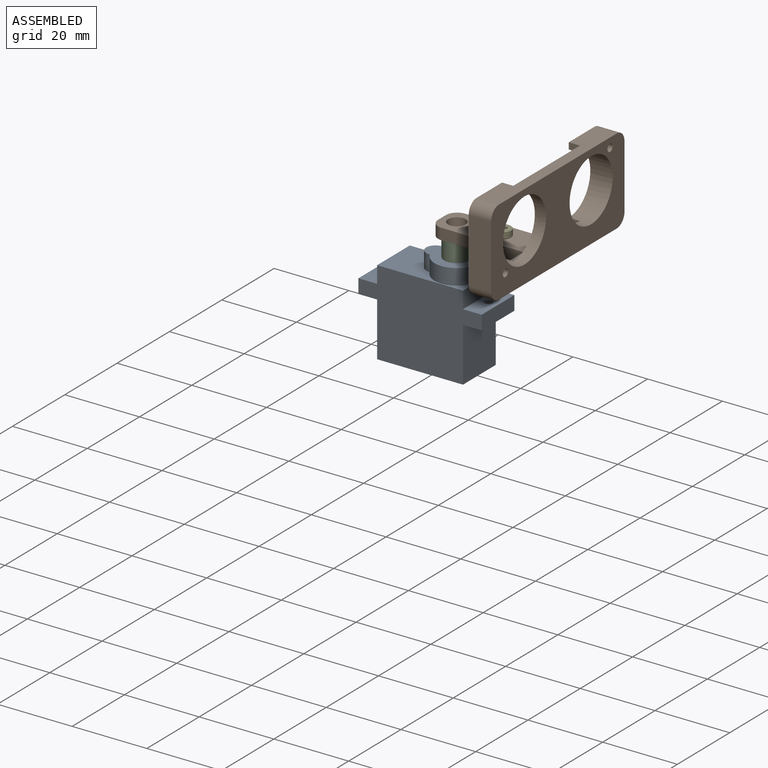
[diagram: assembled view]
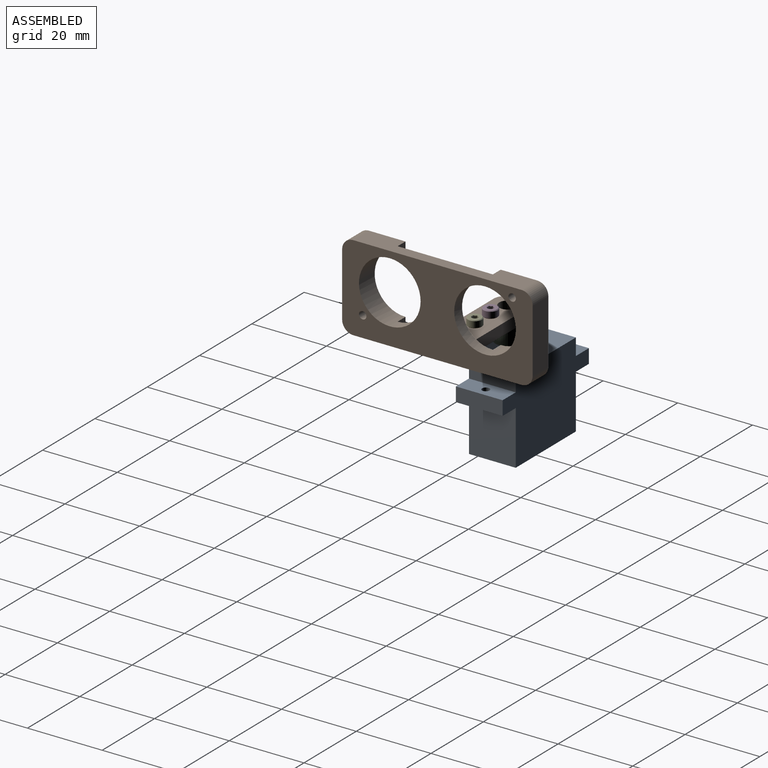
[diagram: assembled view, second angle]
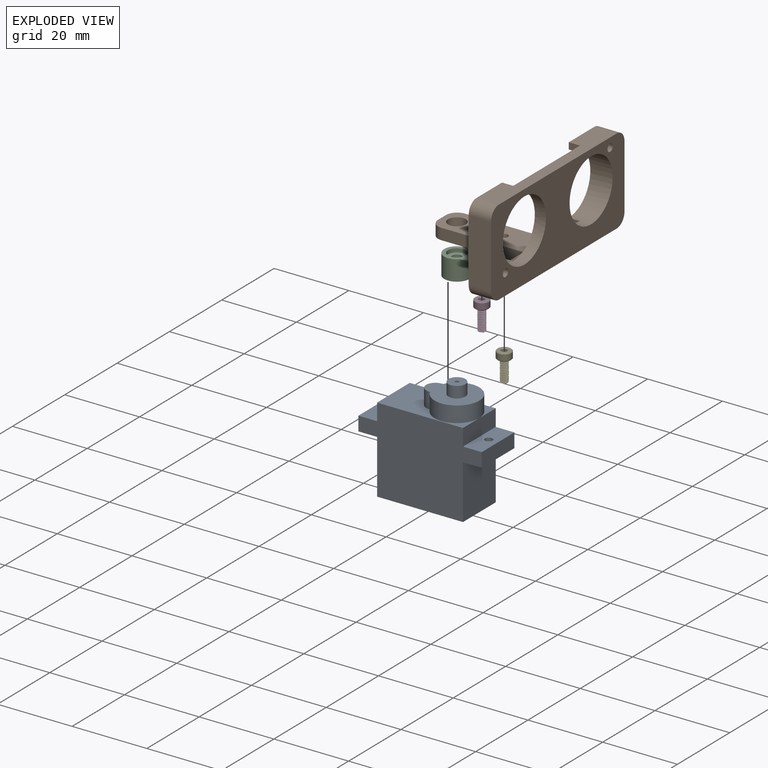
[diagram: exploded view]
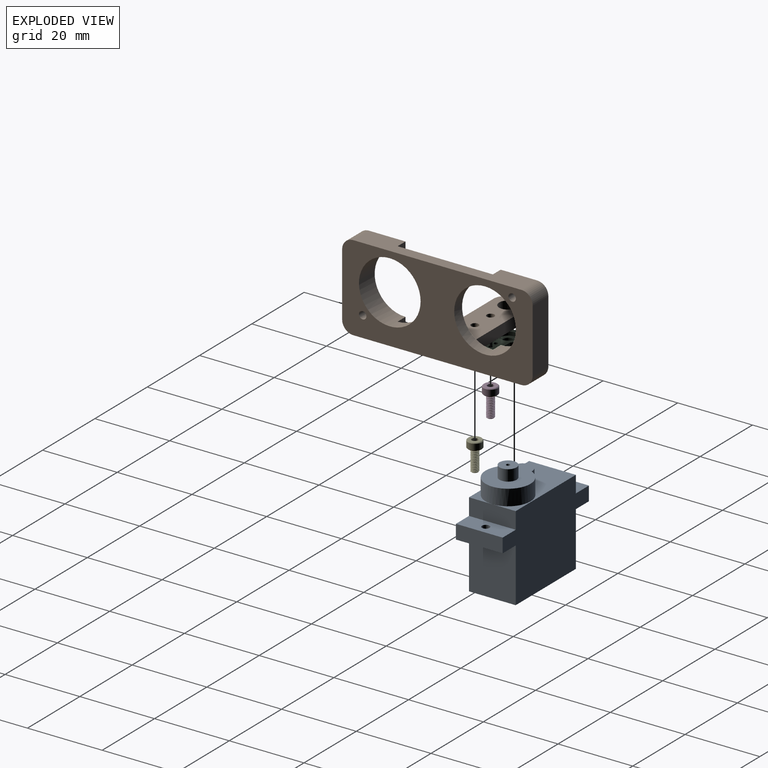
[diagram: exploded view, second angle]
ASSEMBLY  parts=5 mates=4
PART A: 25 faces, bbox 33x12.5x30 mm
  f0: cylinder r=0.5mm len=7.25mm, axis (0,0,1), area 22.8mm2, adj f14,f23
  f1: plane 12.5x4.5mm, normal (-1,0,0), area 56.3mm2, adj f3,f5,f9,f22
  f2: plane 12.5x4.5mm, normal (1,0,0), area 56.3mm2, adj f3,f5,f9,f18
  f3: plane 33x22.75mm, normal (0,-1,0), area 561.2mm2, adj f1,f2,f4,f6,f8,f9,f15,f17
  f4: plane 14.45x12.5mm, normal (1,0,0), area 180.6mm2, adj f3,f5,f8,f17
  f5: plane 33x22.75mm, normal (0,1,0), area 561.2mm2, adj f1,f2,f4,f6,f8,f9,f15,f17
  f6: plane 14.45x12.5mm, normal (-1,0,0), area 180.6mm2, adj f3,f5,f8,f21
  f7: cylinder r=0.5mm len=17.25mm, axis (0,0,1), area 54.2mm2, adj f8,f24
  f8: plane 23x12.5mm, normal (0,0,-1), area 286.7mm2, adj f3,f4,f5,f6,f7
  f9: plane 23x12.5mm, normal (0,0,1), area 164.9mm2, adj f1,f2,f3,f5,f10,f11
  f10: cylinder r=6mm len=12mm, axis (0,0,-1), area 138.5mm2, adj f9,f11,f12
  f11: cylinder r=2.5mm len=5mm, axis (0,0,-1), area 35.8mm2, adj f9,f10,f12
  f12: plane 14.25x12mm, normal (0,0,1), area 105.9mm2, adj f10,f11,f13
  f13: cylinder r=2.3mm len=4.6mm, axis (0,0,-1), area 43.4mm2, adj f12,f14
  f14: plane 4.6x4.6mm, normal (0,0,1), area 15.8mm2, adj f0,f13
  f15: plane 12.5x3.8mm, normal (1,0,0), area 47.5mm2, adj f3,f5,f17,f18
  f16: cylinder r=1mm len=3.8mm, axis (0,0,1), area 23.9mm2, adj f17,f18
  f17: plane 12.5x5mm, normal (0,0,-1), area 59.4mm2, adj f3,f4,f5,f15,f16
  f18: plane 12.5x5mm, normal (0,0,1), area 59.4mm2, adj f2,f3,f5,f15,f16
  f19: plane 12.5x3.8mm, normal (-1,0,0), area 47.5mm2, adj f3,f5,f21,f22
  f20: cylinder r=1mm len=3.8mm, axis (0,0,1), area 23.9mm2, adj f21,f22
  f21: plane 12.5x5mm, normal (0,0,-1), area 59.4mm2, adj f3,f5,f6,f19,f20
  f22: plane 12.5x5mm, normal (0,0,1), area 59.4mm2, adj f1,f3,f5,f19,f20
  f23: plane 1x1mm, normal (0,0,1), area 0.8mm2, adj f0
  f24: plane 1x1mm, normal (0,0,-1), area 0.8mm2, adj f7
PART B: 29 faces, bbox 51x31x23 mm
  f0: plane 23x21mm, normal (0,1,0), area 204.1mm2, adj f1,f4,f5,f8,f9,f10,f11,f12
  f1: plane 28x25.5mm, normal (0,0,1), area 273.6mm2, adj f0,f2,f5,f15,f16,f17,f18,f19
  f2: plane 3x1.75mm, normal (1,0,0), area 5.2mm2, adj f1,f6,f15,f16
  f3: plane 3x1.75mm, normal (1,0,0), area 5.2mm2, adj f6,f10,f15,f16
  f4: plane 3x1.75mm, normal (-1,0,0), area 5.2mm2, adj f0,f10,f11,f16
  f5: plane 3x1.75mm, normal (-1,0,0), area 5.2mm2, adj f0,f1,f11,f16
  f6: cylinder r=8.25mm len=16.5mm, axis (0,1,0), area 233.3mm2, adj f2,f3,f14,f15,f16
  f7: plane 17x6mm, normal (-1,0,0), area 102mm2, adj f14,f15,f25,f26
  f8: plane 45x31mm, normal (0,0,-1), area 467.1mm2, adj f0,f14,f15,f17,f18,f19,f20,f21
  f9: plane 17x6mm, normal (1,0,0), area 102mm2, adj f0,f14,f27,f28
  f10: plane 45x6mm, normal (0,0,1), area 193.5mm2, adj f0,f3,f4,f14,f15,f16,f25,f28
  f11: cylinder r=8.25mm len=16.5mm, axis (0,1,0), area 233.3mm2, adj f0,f4,f5,f14,f16
  f12: cylinder r=1mm len=6mm, axis (0,1,0), area 37.7mm2, adj f0,f14
  f13: cylinder r=1mm len=6mm, axis (0,1,0), area 37.7mm2, adj f14,f15
  f14: plane 51x23mm, normal (0,-1,0), area 731.3mm2, adj f6,f7,f8,f9,f10,f11,f12,f13
  f15: plane 23x21mm, normal (0,1,0), area 204.1mm2, adj f1,f2,f3,f6,f7,f8,f10,f13
  f16: plane 25.5x20mm, normal (0,1,0), area 296.2mm2, adj f1,f2,f3,f4,f5,f6,f10,f11
  f17: plane 22x3mm, normal (-1,0,0), area 66mm2, adj f1,f8,f15,f23
  f18: plane 22x3mm, normal (1,0,0), area 66mm2, adj f0,f1,f8,f24
  f19: plane 3x3mm, normal (0,1,0), area 9mm2, adj f1,f8,f23,f24
  f20: cylinder r=1mm len=3mm, axis (0,0,-1), area 18.8mm2, adj f1,f8
  f21: cylinder r=1mm len=3mm, axis (0,0,-1), area 18.8mm2, adj f1,f8
  f22: cylinder r=2.38mm len=4.75mm, axis (0,0,-1), area 44.8mm2, adj f1,f8
  f23: cylinder r=3mm len=3mm, axis (0,0,1), area 14.1mm2, adj f1,f8,f17,f19
  f24: cylinder r=3mm len=3mm, axis (0,0,-1), area 14.1mm2, adj f1,f8,f18,f19
  f25: cylinder r=3mm len=6mm, axis (0,-1,0), area 28.3mm2, adj f7,f10,f14,f15
  f26: cylinder r=3mm len=6mm, axis (0,1,0), area 28.3mm2, adj f7,f8,f14,f15
  f27: cylinder r=3mm len=6mm, axis (0,-1,0), area 28.3mm2, adj f0,f8,f9,f14
  f28: cylinder r=3mm len=6mm, axis (0,1,0), area 28.3mm2, adj f0,f9,f10,f14
PART C: 18 faces, bbox 19.1x6.8x5.4 mm
  f0: cylinder r=1.75mm len=3.5mm, axis (0,0,-1), area 10mm2, adj f1,f2,f3,f4
  f1: plane 11.41x1.82mm, normal (-0.05,-1,0), area 20.8mm2, adj f0,f3,f4,f5
  f2: plane 11.41x1.82mm, normal (-0.05,1,0), area 20.8mm2, adj f0,f3,f4,f5
  f3: plane 19.09x6.84mm, normal (0,0,1), area 62.7mm2, adj f0,f1,f2,f5,f7,f12,f13,f14
  f4: plane 13.16x4.65mm, normal (0,0,-1), area 43.7mm2, adj f0,f1,f2,f5,f12,f13,f14,f15
  f5: cylinder r=3.42mm len=6.84mm, axis (0,0,1), area 106.7mm2, adj f1,f2,f3,f4,f6
  f6: plane 6.84x6.84mm, normal (0,0,-1), area 19mm2, adj f5,f9
  f7: cylinder r=2.38mm len=4.75mm, axis (0,0,1), area 14.9mm2, adj f3,f8
  f8: plane 4.75x4.75mm, normal (0,0,1), area 12.8mm2, adj f7,f11
  f9: cylinder r=2.38mm len=4.75mm, axis (0,0,-1), area 44.8mm2, adj f6,f10
  f10: plane 4.75x4.75mm, normal (0,0,-1), area 12.8mm2, adj f9,f11
  f11: cylinder r=1.25mm len=2.5mm, axis (0,0,1), area 11mm2, adj f8,f10
  f12: cylinder r=0.5mm len=1.82mm, axis (0,0,1), area 5.7mm2, adj f3,f4
  f13: cylinder r=0.5mm len=1.82mm, axis (0,0,1), area 5.7mm2, adj f3,f4
  f14: cylinder r=0.5mm len=1.82mm, axis (0,0,1), area 5.7mm2, adj f3,f4
  f15: cylinder r=0.5mm len=1.82mm, axis (0,0,1), area 5.7mm2, adj f3,f4
  f16: cylinder r=0.5mm len=1.82mm, axis (0,0,1), area 5.7mm2, adj f3,f4
  f17: cylinder r=0.5mm len=1.82mm, axis (0,0,1), area 5.7mm2, adj f3,f4
PART D: 24 faces, bbox 4.1x4.1x8.3 mm
  f0: cylinder r=1mm len=5.64mm, axis (0,0,1), area 6mm2, adj f1,f2,f4,f8
  f1: bspline ~6.22x2.31mm, area 23.5mm2, adj f0,f3,f4,f8
  f2: bspline ~6.08x2.31mm, area 23.5mm2, adj f0,f3,f4,f8
  f3: cylinder r=0.74mm len=5.82mm, axis (0,0,-1), area 7.5mm2, adj f1,f2,f4,f8
  f4: cone r=0.49mm half-angle=55deg, axis (0,0,-1), area 2mm2, adj f0,f1,f2,f3,f5
  f5: plane 0.97x0.97mm, normal (0,0,1), area 0.7mm2, adj f4
  f6: cylinder r=1.9mm len=3.8mm, axis (0,0,1), area 19.3mm2, adj f22,f23
  f7: plane 3.42x3.42mm, normal (0,0,-1), area 6.8mm2, adj f9,f10,f11,f12,f13,f14,f22
  f8: plane 3.58x3.58mm, normal (0,0,1), area 6.8mm2, adj f0,f1,f2,f3,f23
  f9: cone r=0.87mm half-angle=45deg, axis (0,0,-1), area 0mm2, adj f7,f16
  f10: cone r=0.87mm half-angle=45deg, axis (0,0,-1), area 0mm2, adj f7,f17
  f11: cone r=0.87mm half-angle=45deg, axis (0,0,-1), area 0mm2, adj f7,f18
  f12: cone r=0.87mm half-angle=45deg, axis (0,0,-1), area 0mm2, adj f7,f19
  f13: cone r=0.87mm half-angle=45deg, axis (0,0,-1), area 0mm2, adj f7,f20
  f14: cone r=0.87mm half-angle=45deg, axis (0,0,-1), area 0mm2, adj f7,f21
  f15: plane 1.73x1.5mm, normal (0,0,-1), area 1.9mm2, adj f16,f17,f18,f19,f20,f21
  f16: plane 1.45x1.08mm, normal (-0.5,-0.87,0), area 0.9mm2, adj f9,f15,f17,f21
  f17: plane 1.45x1.2mm, normal (-1,0,0), area 0.9mm2, adj f10,f15,f16,f18
  f18: plane 1.45x1.08mm, normal (-0.5,0.87,0), area 0.9mm2, adj f11,f15,f17,f19
  f19: plane 1.45x1.08mm, normal (0.5,0.87,0), area 0.9mm2, adj f12,f15,f18,f20
  f20: plane 1.45x1.2mm, normal (1,0,0), area 0.9mm2, adj f13,f15,f19,f21
  f21: plane 1.45x1.08mm, normal (0.5,-0.87,0), area 0.9mm2, adj f14,f15,f16,f20
  f22: cone r=1.71mm half-angle=45deg, axis (0,0,1), area 3mm2, adj f6,f7
  f23: cone r=1.9mm half-angle=45deg, axis (0,0,-1), area 3mm2, adj f6,f8
PART E: same geometry as D
PLACE A t=(25.07,12.02,4.06)mm fixed
PLACE B rot(axis=(0,0,1),90deg) t=(51.57,12.02,26.71)mm
PLACE C rot(axis=(0,0,-1),180deg) t=(30.57,12.02,12.8)mm
PLACE D rot(axis=(0.71,0.71,0),180deg) t=(37.24,12.02,10.71)mm
PLACE E rot(axis=(0.71,0.71,0),180deg) t=(43.24,12.02,10.71)mm
MATE fastened D.f0 <-> B.f20  axis (0,0,-1) through (37.24,12.02,16.71)mm
MATE fastened B.f22 <-> C.f5  axis (0,0,-1) through (30.57,12.02,13.71)mm
MATE fastened E.f0 <-> B.f21  axis (0,0,-1) through (43.24,12.02,16.71)mm
MATE revolute C.f5 <-> A.f0  axis (0,0,-1) through (30.57,12.02,11.31)mm
